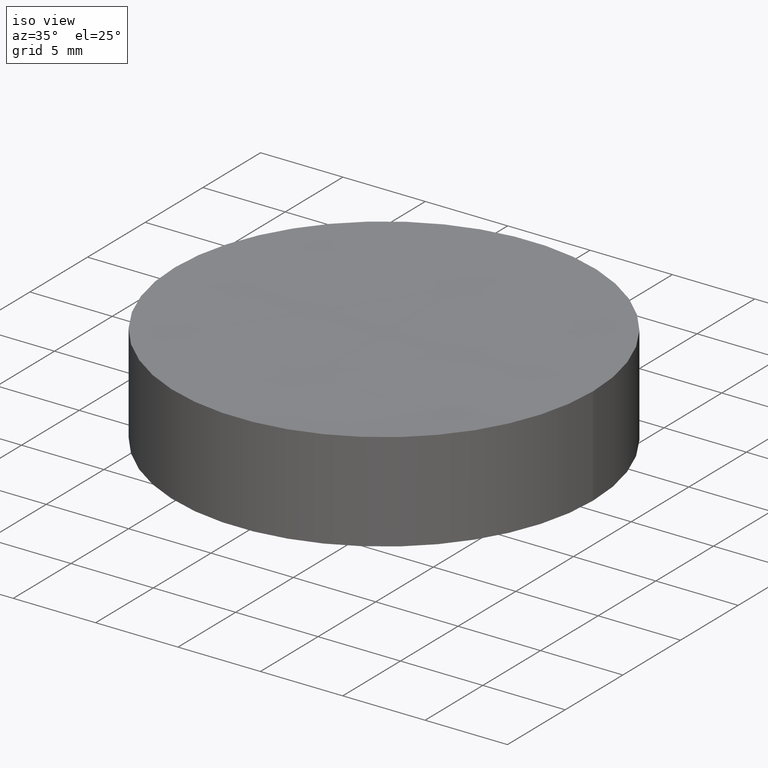
[diagram: clean part render]
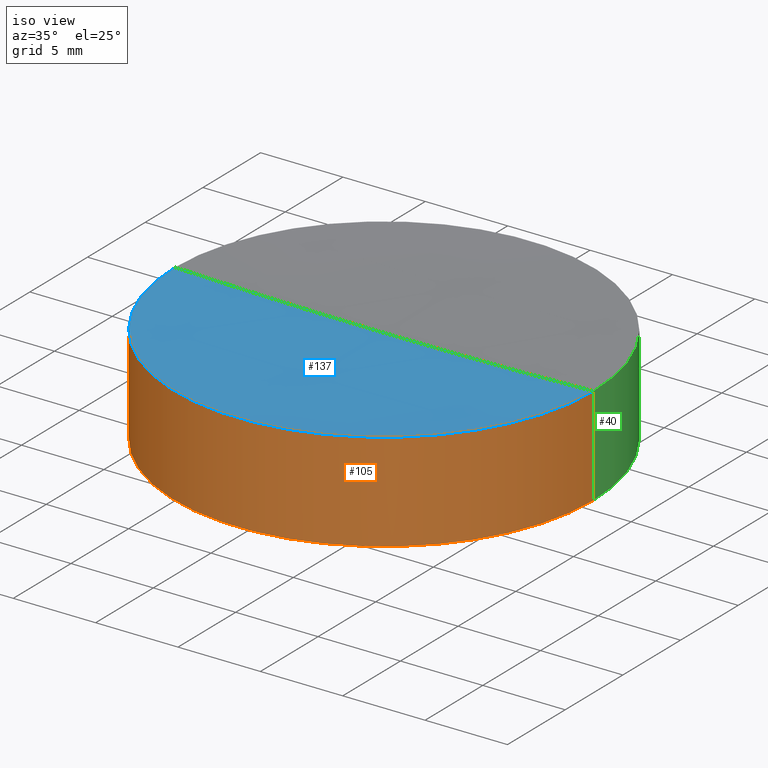
[diagram: same view with three faces highlighted in distinct colors, each labeled with its STEP entity id]
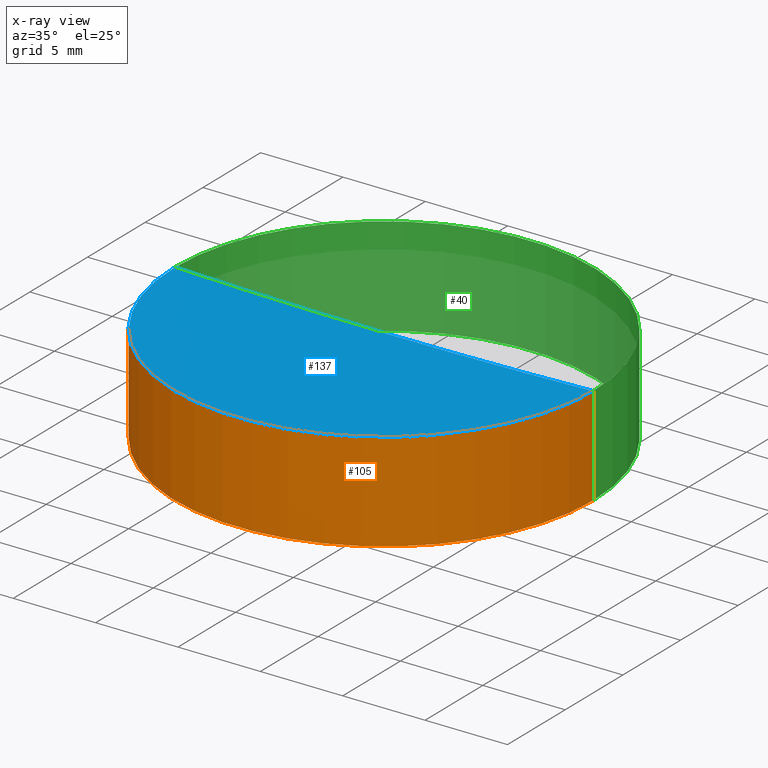
[diagram: x-ray of the same camera — body ghosted, the three highlighted faces saturated]
A machine part, iso view with three faces highlighted in distinct colors.
The next image is the same camera in x-ray (body ghosted, the three faces saturated) — at least one of them is partly hidden behind the body in this view.
Their STEP definitions:

[orange] entity #105 — the highlighted cylindrical surface (partial cylindrical patch) has radius 12.7 mm, axis along (-0, -0, -1).
#2 = ORIENTED_EDGE ( 'NONE', *, *, #187, .T. ) ;
#9 = CYLINDRICAL_SURFACE ( 'NONE', #28, 12.69999999999999929 ) ;
#11 = CARTESIAN_POINT ( 'NONE',  ( 0.000000000000000000, 0.000000000000000000, 0.000000000000000000 ) ) ;
#13 = LINE ( 'NONE', #167, #174 ) ;
#20 = DIRECTION ( 'NONE',  ( 1.000000000000000000, 0.000000000000000000, 0.000000000000000000 ) ) ;
#25 = CARTESIAN_POINT ( 'NONE',  ( -12.69999999999999929, 0.000000000000000000, 0.000000000000000000 ) ) ;
#28 = AXIS2_PLACEMENT_3D ( 'NONE', #118, #184, #54 ) ;
#32 = EDGE_CURVE ( 'NONE', #74, #130, #79, .T. ) ;
#39 = CIRCLE ( 'NONE', #181, 12.69999999999923546 ) ;
#43 = ORIENTED_EDGE ( 'NONE', *, *, #67, .T. ) ;
#47 = EDGE_LOOP ( 'NONE', ( #146, #2, #43, #160 ) ) ;
#50 = FACE_OUTER_BOUND ( 'NONE', #47, .T. ) ;
#54 = DIRECTION ( 'NONE',  ( -1.000000000000000000, 0.000000000000000000, 0.000000000000000000 ) ) ;
#60 = VERTEX_POINT ( 'NONE', #191 ) ;
#65 = DIRECTION ( 'NONE',  ( 0.000000000000000000, 0.000000000000000000, 1.000000000000000000 ) ) ;
#66 = DIRECTION ( 'NONE',  ( 1.000000000000000000, 0.000000000000000000, 0.000000000000000000 ) ) ;
#67 = EDGE_CURVE ( 'NONE', #60, #110, #13, .T. ) ;
#74 = VERTEX_POINT ( 'NONE', #177 ) ;
#76 = DIRECTION ( 'NONE',  ( -0.000000000000000000, -0.000000000000000000, -1.000000000000000000 ) ) ;
#79 = LINE ( 'NONE', #121, #155 ) ;
#90 = AXIS2_PLACEMENT_3D ( 'NONE', #11, #65, #66 ) ;
#105 = ADVANCED_FACE ( 'NONE', ( #50 ), #9, .T. ) ;
#110 = VERTEX_POINT ( 'NONE', #25 ) ;
#114 = CARTESIAN_POINT ( 'NONE',  ( 5.030698080332740574E-14, 0.000000000000000000, 6.000000000000005329 ) ) ;
#118 = CARTESIAN_POINT ( 'NONE',  ( 0.000000000000000000, 0.000000000000000000, 6.000000000000000000 ) ) ;
#121 = CARTESIAN_POINT ( 'NONE',  ( 12.69999999999999929, 1.555301434917138433E-15, 6.000000000000000000 ) ) ;
#125 = CIRCLE ( 'NONE', #90, 12.69999999999999929 ) ;
#130 = VERTEX_POINT ( 'NONE', #150 ) ;
#142 = EDGE_CURVE ( 'NONE', #110, #130, #125, .T. ) ;
#146 = ORIENTED_EDGE ( 'NONE', *, *, #32, .F. ) ;
#150 = CARTESIAN_POINT ( 'NONE',  ( 12.69999999999999929, 1.555301434917138433E-15, 0.000000000000000000 ) ) ;
#155 = VECTOR ( 'NONE', #164, 1000.000000000000000 ) ;
#160 = ORIENTED_EDGE ( 'NONE', *, *, #142, .T. ) ;
#164 = DIRECTION ( 'NONE',  ( -0.000000000000000000, -0.000000000000000000, -1.000000000000000000 ) ) ;
#167 = CARTESIAN_POINT ( 'NONE',  ( -12.69999999999999929, 0.000000000000000000, 6.000000000000000000 ) ) ;
#174 = VECTOR ( 'NONE', #198, 1000.000000000000000 ) ;
#177 = CARTESIAN_POINT ( 'NONE',  ( 12.69999999999928697, 1.555301434917095045E-15, 6.000000000000005329 ) ) ;
#181 = AXIS2_PLACEMENT_3D ( 'NONE', #114, #76, #20 ) ;
#184 = DIRECTION ( 'NONE',  ( -0.000000000000000000, -0.000000000000000000, -1.000000000000000000 ) ) ;
#187 = EDGE_CURVE ( 'NONE', #74, #60, #39, .T. ) ;
#191 = CARTESIAN_POINT ( 'NONE',  ( -12.69999999999918572, 0.000000000000000000, 6.000000000000005329 ) ) ;
#198 = DIRECTION ( 'NONE',  ( -0.000000000000000000, -0.000000000000000000, -1.000000000000000000 ) ) ;

[blue] entity #137 — the highlighted spherical surface has radius 400 mm.
#20 = DIRECTION ( 'NONE',  ( 1.000000000000000000, 0.000000000000000000, 0.000000000000000000 ) ) ;
#31 = EDGE_LOOP ( 'NONE', ( #172, #128, #77 ) ) ;
#39 = CIRCLE ( 'NONE', #181, 12.69999999999923546 ) ;
#52 = FACE_OUTER_BOUND ( 'NONE', #31, .T. ) ;
#53 = CARTESIAN_POINT ( 'NONE',  ( 7.479991678627446061E-14, 0.000000000000000000, 5.798336664874115698 ) ) ;
#60 = VERTEX_POINT ( 'NONE', #191 ) ;
#64 = AXIS2_PLACEMENT_3D ( 'NONE', #136, #102, #148 ) ;
#74 = VERTEX_POINT ( 'NONE', #177 ) ;
#76 = DIRECTION ( 'NONE',  ( -0.000000000000000000, -0.000000000000000000, -1.000000000000000000 ) ) ;
#77 = ORIENTED_EDGE ( 'NONE', *, *, #156, .T. ) ;
#81 = CIRCLE ( 'NONE', #149, 400.0000000000000568 ) ;
#100 = EDGE_CURVE ( 'NONE', #60, #145, #193, .T. ) ;
#102 = DIRECTION ( 'NONE',  ( 1.224646799147353207E-16, -1.000000000000000000, 0.000000000000000000 ) ) ;
#113 = AXIS2_PLACEMENT_3D ( 'NONE', #115, #195, #117 ) ;
#114 = CARTESIAN_POINT ( 'NONE',  ( 5.030698080332740574E-14, 0.000000000000000000, 6.000000000000005329 ) ) ;
#115 = CARTESIAN_POINT ( 'NONE',  ( 5.030698080332740574E-14, 0.000000000000000000, 405.7983366648741139 ) ) ;
#117 = DIRECTION ( 'NONE',  ( 1.000000000000000000, 0.000000000000000000, 0.000000000000000000 ) ) ;
#127 = CARTESIAN_POINT ( 'NONE',  ( 5.030698080332740574E-14, 0.000000000000000000, 405.7983366648741139 ) ) ;
#128 = ORIENTED_EDGE ( 'NONE', *, *, #187, .F. ) ;
#136 = CARTESIAN_POINT ( 'NONE',  ( 5.030698080332740574E-14, 0.000000000000000000, 405.7983366648741139 ) ) ;
#137 = ADVANCED_FACE ( 'NONE', ( #52 ), #197, .F. ) ;
#145 = VERTEX_POINT ( 'NONE', #53 ) ;
#148 = DIRECTION ( 'NONE',  ( 1.000000000000000000, 1.224646799147353207E-16, 0.000000000000000000 ) ) ;
#149 = AXIS2_PLACEMENT_3D ( 'NONE', #127, #188, #190 ) ;
#156 = EDGE_CURVE ( 'NONE', #74, #145, #81, .T. ) ;
#172 = ORIENTED_EDGE ( 'NONE', *, *, #100, .F. ) ;
#177 = CARTESIAN_POINT ( 'NONE',  ( 12.69999999999928697, 1.555301434917095045E-15, 6.000000000000005329 ) ) ;
#181 = AXIS2_PLACEMENT_3D ( 'NONE', #114, #76, #20 ) ;
#187 = EDGE_CURVE ( 'NONE', #74, #60, #39, .T. ) ;
#188 = DIRECTION ( 'NONE',  ( 0.000000000000000000, 1.000000000000000000, -0.000000000000000000 ) ) ;
#190 = DIRECTION ( 'NONE',  ( 0.000000000000000000, 0.000000000000000000, 1.000000000000000000 ) ) ;
#191 = CARTESIAN_POINT ( 'NONE',  ( -12.69999999999918572, 0.000000000000000000, 6.000000000000005329 ) ) ;
#193 = CIRCLE ( 'NONE', #64, 400.0000000000000000 ) ;
#195 = DIRECTION ( 'NONE',  ( 0.000000000000000000, -1.000000000000000000, -0.000000000000000000 ) ) ;
#197 = SPHERICAL_SURFACE ( 'NONE', #113, 400.0000000000000000 ) ;

[green] entity #40 — the highlighted cylindrical surface (partial cylindrical patch) has radius 12.7 mm, axis along (-0, -0, -1).
#4 = ORIENTED_EDGE ( 'NONE', *, *, #71, .T. ) ;
#13 = LINE ( 'NONE', #167, #174 ) ;
#19 = DIRECTION ( 'NONE',  ( 1.000000000000000000, 0.000000000000000000, 0.000000000000000000 ) ) ;
#22 = CIRCLE ( 'NONE', #57, 12.69999999999923546 ) ;
#25 = CARTESIAN_POINT ( 'NONE',  ( -12.69999999999999929, 0.000000000000000000, 0.000000000000000000 ) ) ;
#32 = EDGE_CURVE ( 'NONE', #74, #130, #79, .T. ) ;
#37 = DIRECTION ( 'NONE',  ( -0.000000000000000000, -0.000000000000000000, -1.000000000000000000 ) ) ;
#40 = ADVANCED_FACE ( 'NONE', ( #103 ), #133, .T. ) ;
#41 = DIRECTION ( 'NONE',  ( -0.000000000000000000, -0.000000000000000000, -1.000000000000000000 ) ) ;
#42 = CIRCLE ( 'NONE', #111, 12.69999999999999929 ) ;
#44 = ORIENTED_EDGE ( 'NONE', *, *, #32, .T. ) ;
#57 = AXIS2_PLACEMENT_3D ( 'NONE', #86, #41, #82 ) ;
#60 = VERTEX_POINT ( 'NONE', #191 ) ;
#67 = EDGE_CURVE ( 'NONE', #60, #110, #13, .T. ) ;
#69 = DIRECTION ( 'NONE',  ( 0.000000000000000000, 0.000000000000000000, 1.000000000000000000 ) ) ;
#71 = EDGE_CURVE ( 'NONE', #130, #110, #42, .T. ) ;
#74 = VERTEX_POINT ( 'NONE', #177 ) ;
#79 = LINE ( 'NONE', #121, #155 ) ;
#82 = DIRECTION ( 'NONE',  ( 1.000000000000000000, 0.000000000000000000, 0.000000000000000000 ) ) ;
#84 = CARTESIAN_POINT ( 'NONE',  ( 0.000000000000000000, 0.000000000000000000, 6.000000000000000000 ) ) ;
#86 = CARTESIAN_POINT ( 'NONE',  ( 5.030698080332740574E-14, 0.000000000000000000, 6.000000000000005329 ) ) ;
#103 = FACE_OUTER_BOUND ( 'NONE', #141, .T. ) ;
#110 = VERTEX_POINT ( 'NONE', #25 ) ;
#111 = AXIS2_PLACEMENT_3D ( 'NONE', #152, #69, #19 ) ;
#121 = CARTESIAN_POINT ( 'NONE',  ( 12.69999999999999929, 1.555301434917138433E-15, 6.000000000000000000 ) ) ;
#122 = EDGE_CURVE ( 'NONE', #60, #74, #22, .T. ) ;
#130 = VERTEX_POINT ( 'NONE', #150 ) ;
#131 = AXIS2_PLACEMENT_3D ( 'NONE', #84, #37, #162 ) ;
#133 = CYLINDRICAL_SURFACE ( 'NONE', #131, 12.69999999999999929 ) ;
#141 = EDGE_LOOP ( 'NONE', ( #143, #44, #4, #189 ) ) ;
#143 = ORIENTED_EDGE ( 'NONE', *, *, #122, .T. ) ;
#150 = CARTESIAN_POINT ( 'NONE',  ( 12.69999999999999929, 1.555301434917138433E-15, 0.000000000000000000 ) ) ;
#152 = CARTESIAN_POINT ( 'NONE',  ( 0.000000000000000000, 0.000000000000000000, 0.000000000000000000 ) ) ;
#155 = VECTOR ( 'NONE', #164, 1000.000000000000000 ) ;
#162 = DIRECTION ( 'NONE',  ( -1.000000000000000000, 0.000000000000000000, 0.000000000000000000 ) ) ;
#164 = DIRECTION ( 'NONE',  ( -0.000000000000000000, -0.000000000000000000, -1.000000000000000000 ) ) ;
#167 = CARTESIAN_POINT ( 'NONE',  ( -12.69999999999999929, 0.000000000000000000, 6.000000000000000000 ) ) ;
#174 = VECTOR ( 'NONE', #198, 1000.000000000000000 ) ;
#177 = CARTESIAN_POINT ( 'NONE',  ( 12.69999999999928697, 1.555301434917095045E-15, 6.000000000000005329 ) ) ;
#189 = ORIENTED_EDGE ( 'NONE', *, *, #67, .F. ) ;
#191 = CARTESIAN_POINT ( 'NONE',  ( -12.69999999999918572, 0.000000000000000000, 6.000000000000005329 ) ) ;
#198 = DIRECTION ( 'NONE',  ( -0.000000000000000000, -0.000000000000000000, -1.000000000000000000 ) ) ;